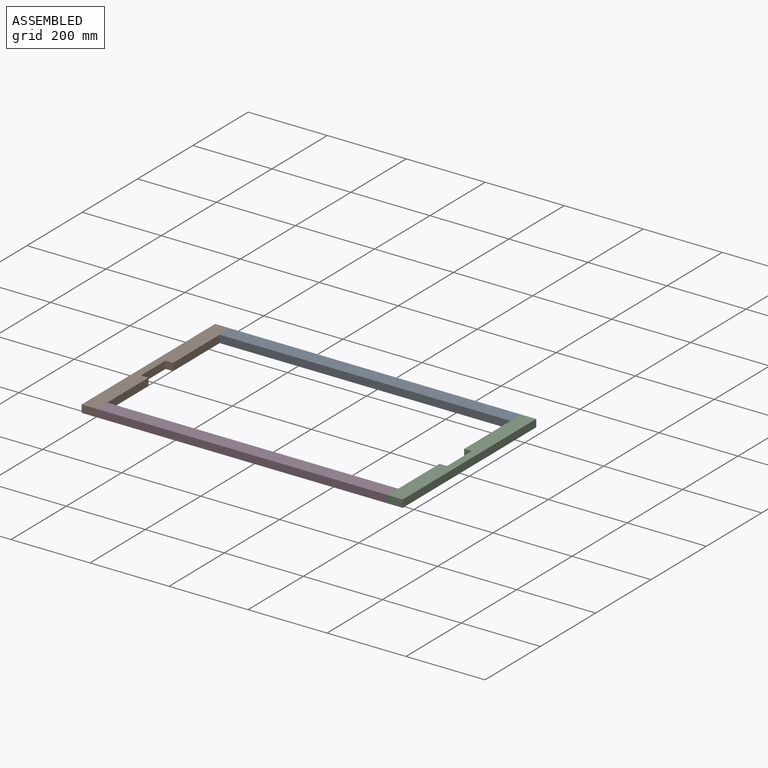
[diagram: assembled view]
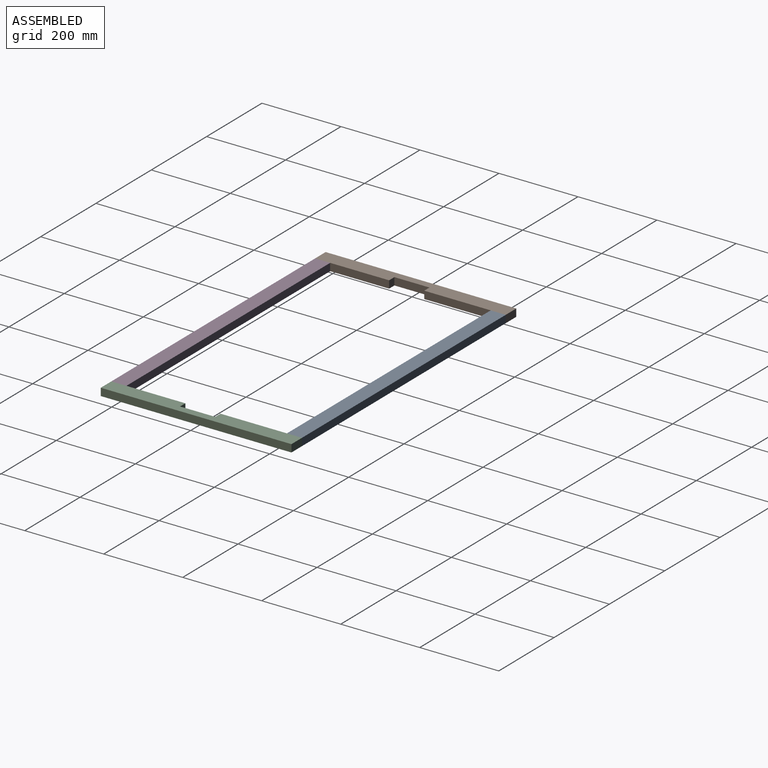
[diagram: assembled view, second angle]
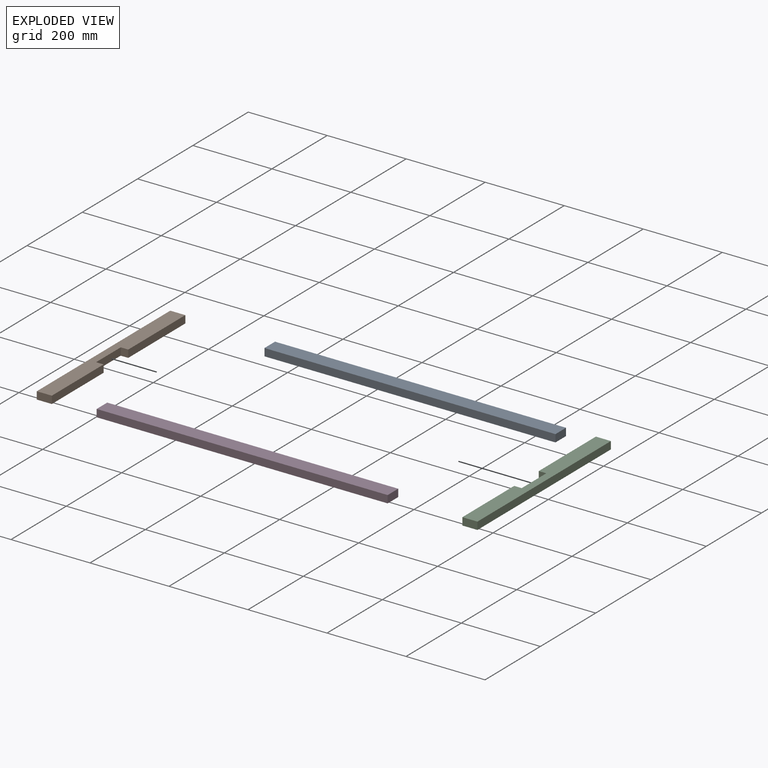
[diagram: exploded view]
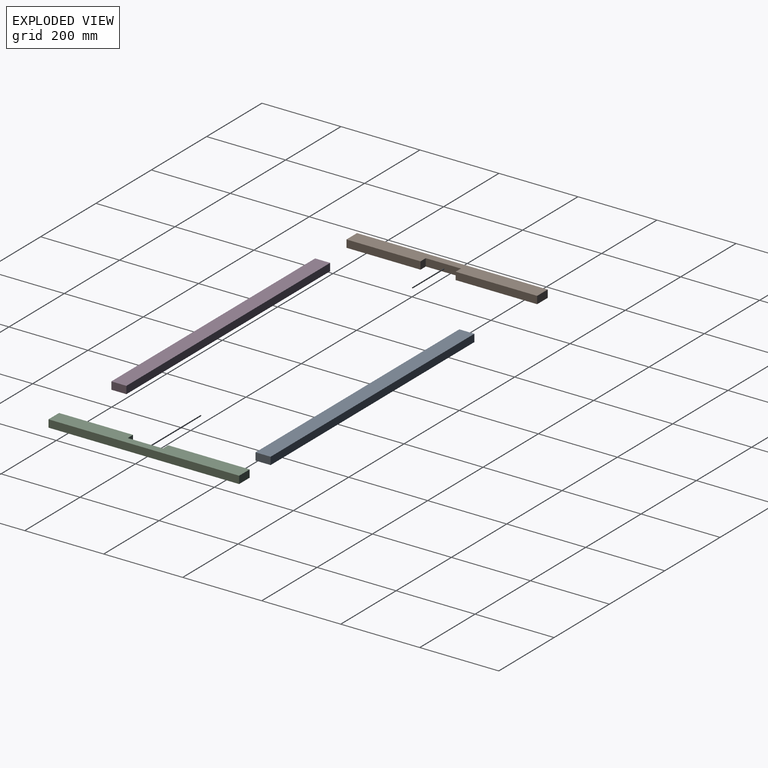
[diagram: exploded view, second angle]
ASSEMBLY  parts=4 mates=3
PART A: 6 faces, bbox 736.6x38.1x19.1 mm
  f0: plane 736.6x19.05mm, normal (0,1,0), area 14032.2mm2, adj f1,f3,f4,f5
  f1: plane 38.1x19.05mm, normal (-1,0,0), area 725.8mm2, adj f0,f2,f4,f5
  f2: plane 736.6x19.05mm, normal (0,-1,0), area 14032.2mm2, adj f1,f3,f4,f5
  f3: plane 38.1x19.05mm, normal (1,0,0), area 725.8mm2, adj f0,f2,f4,f5
  f4: plane 736.6x38.1mm, normal (0,0,1), area 28064.5mm2, adj f0,f1,f2,f3
  f5: plane 736.6x38.1mm, normal (0,0,-1), area 28064.5mm2, adj f0,f1,f2,f3
PART B: 10 faces, bbox 38.1x482.6x19.1 mm
  f0: plane 187.33x19.05mm, normal (1,0,0), area 3568.5mm2, adj f1,f2,f5,f7
  f1: plane 482.6x38.1mm, normal (0,0,1), area 16693.5mm2, adj f0,f3,f4,f5,f6,f7,f8,f9
  f2: plane 482.6x38.1mm, normal (0,0,-1), area 16693.5mm2, adj f0,f3,f4,f5,f6,f7,f8,f9
  f3: plane 38.1x19.05mm, normal (0,1,0), area 725.8mm2, adj f1,f2,f4,f6
  f4: plane 482.6x19.05mm, normal (-1,0,0), area 9193.5mm2, adj f1,f2,f3,f5
  f5: plane 38.1x19.05mm, normal (0,-1,0), area 725.8mm2, adj f0,f1,f2,f4
  f6: plane 206.38x19.05mm, normal (1,0,0), area 3931.4mm2, adj f1,f2,f3,f8
  f7: plane 19.05x19.05mm, normal (0,1,0), area 362.9mm2, adj f0,f1,f2,f9
  f8: plane 19.05x19.05mm, normal (0,-1,0), area 362.9mm2, adj f1,f2,f6,f9
  f9: plane 88.9x19.05mm, normal (1,0,0), area 1693.5mm2, adj f1,f2,f7,f8
PART C: same geometry as B
PART D: same geometry as A
PLACE A rot(axis=(1,0,0),180deg) t=(387.35,231.78,9.52)mm
PLACE B t=(0,9.52,9.52)mm
PLACE C rot(axis=(0,1,0),180deg) t=(774.7,9.52,9.53)mm
PLACE D t=(387.35,-212.73,9.53)mm
MATE fastened D.f2 <-> B.f5  axis (0,-1,0) through (19.05,-231.78,19.05)mm
MATE fastened A.f1 <-> B.f6  axis (1,0,0) through (19.05,250.82,19.05)mm
MATE fastened C.f5 <-> D.f2  axis (0,-1,0) through (755.65,-231.78,19.05)mm
